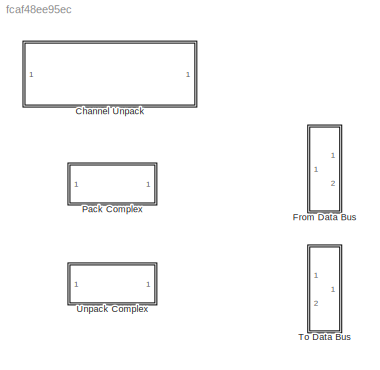
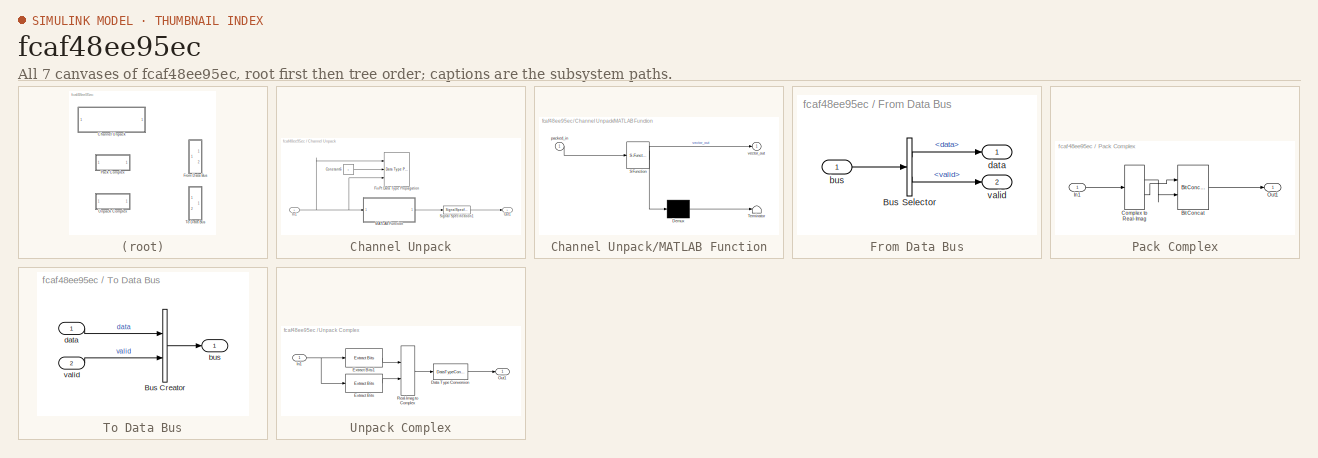
[diagram: thumbnail index - all 7 canvases of the model, root first then tree order]
MODEL slx_fcaf48ee95ec
KIND library
CONFIG AbsTol = auto
CONFIG EnableMultiTasking = off
CONFIG FixedStep = auto
CONFIG MaxStep = auto
CONFIG MinStep = auto
CONFIG RelTol = 1e-3
CONFIG SampleTimeConstraint = Unconstrained
CONFIG Solver = VariableStepAuto
CONFIG SolverName = VariableStepAuto
CONFIG StartTime = 0.0
CONFIG StopTime = 10.0
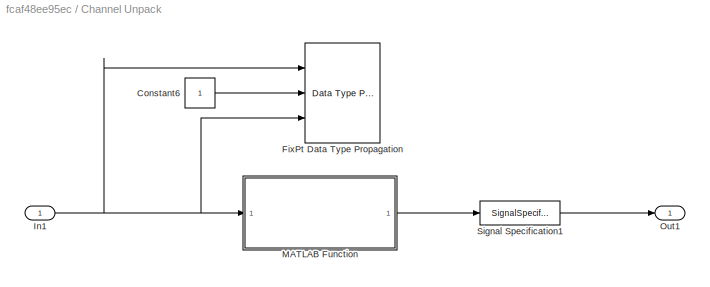
BLOCK [SubSystem] Channel Unpack
  Ports = [1, 1]
  RequestExecContextInheritance = off
BLOCK [Constant] Channel Unpack/Constant6
  OutDataTypeStr = int16
  SampleTime = -1
BLOCK [Reference] Channel Unpack/FixPt Data Type Propagation  REF=simulink/Signal
Attributes/Data Type
Propagation
  Ports = [3]
  SourceBlock = simulink/Signal\nAttributes/Data Type\nPropagation
  SourceProductBaseCode = SL
  SourceProductName = Simulink
  SourceType = Data Type Propagation
BLOCK [Inport] Channel Unpack/In1
  IconDisplay = Port number
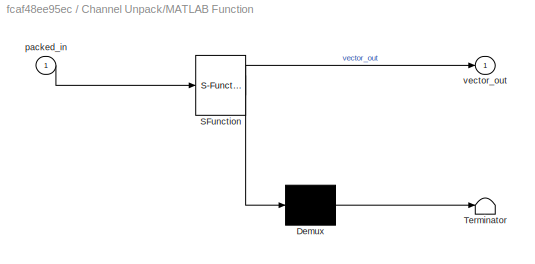
BLOCK [SubSystem] Channel Unpack/MATLAB Function
  ErrorFcn = Stateflow.Translate.translate
  PermitHierarchicalResolution = ExplicitOnly
  Ports = [1, 1]
  RequestExecContextInheritance = off
  SFBlockType = MATLAB Function
  TreatAsAtomicUnit = on
BLOCK [Demux] Channel Unpack/MATLAB Function/ Demux 
  Outputs = 1
  Ports = [1, 1]
BLOCK [S-Function] Channel Unpack/MATLAB Function/ SFunction 
  EnableBusSupport = off
  FunctionName = sf_sfun
  Parameters = complexSamples,samplesPerClock
  PortCounts = [1 2]
  Ports = [1, 2]
  SFcnIsStateOwnerBlock = off
  SFunctionDeploymentMode = off
  Tag = Stateflow S-Function 1
BLOCK [Terminator] Channel Unpack/MATLAB Function/ Terminator 
BLOCK [Inport] Channel Unpack/MATLAB Function/packed_in
  IconDisplay = Port number
BLOCK [Outport] Channel Unpack/MATLAB Function/vector_out
  IconDisplay = Port number
  VectorParamsAs1DForOutWhenUnconnected = off
BLOCK [Outport] Channel Unpack/Out1
  IconDisplay = Port number
  VectorParamsAs1DForOutWhenUnconnected = off
BLOCK [SignalSpecification] Channel Unpack/Signal Specification1
  Dimensions = [samplesPerClock 1]
BLOCK [SubSystem] From Data Bus
  MaskHideContents = on
  Ports = [1, 2]
  RequestExecContextInheritance = off
BLOCK [BusSelector] From Data Bus/Bus Selector
  OutputAsBus = off
  OutputSignals = data,valid
  Ports = [1, 2]
BLOCK [Inport] From Data Bus/bus
  IconDisplay = Port number
BLOCK [Outport] From Data Bus/data
  IconDisplay = Port number
  VectorParamsAs1DForOutWhenUnconnected = off
BLOCK [Outport] From Data Bus/valid
  IconDisplay = Port number
  Port = 2
  VectorParamsAs1DForOutWhenUnconnected = off
BLOCK [SubSystem] Pack Complex
  MaskHideContents = on
  Ports = [1, 1]
  RequestExecContextInheritance = off
BLOCK [Reference] Pack Complex/Bit Concat  REF=hdlsllib/Logic and Bit
Operations/Bit Concat
  Ports = [2, 1]
  SourceBlock = hdlsllib/Logic and Bit\nOperations/Bit Concat
  SourceProductBaseCode = HD
  SourceProductName = HDL Coder
  SourceType = Bit Concat
BLOCK [ComplexToRealImag] Pack Complex/Complex to Real-Imag
  Ports = [1, 2]
BLOCK [Inport] Pack Complex/In1
  IconDisplay = Port number
BLOCK [Outport] Pack Complex/Out1
  IconDisplay = Port number
  VectorParamsAs1DForOutWhenUnconnected = off
BLOCK [SubSystem] To Data Bus
  MaskHideContents = on
  Ports = [2, 1]
  RequestExecContextInheritance = off
BLOCK [BusCreator] To Data Bus/Bus Creator
  DisplayOption = bar
  InheritFromInputs = on
  Inputs = 2
  Ports = [2, 1]
BLOCK [Outport] To Data Bus/bus
  IconDisplay = Port number
  VectorParamsAs1DForOutWhenUnconnected = off
BLOCK [Inport] To Data Bus/data
  IconDisplay = Port number
BLOCK [Inport] To Data Bus/valid
  IconDisplay = Port number
  Port = 2
BLOCK [SubSystem] Unpack Complex
  MaskHideContents = on
  Ports = [1, 1]
  RequestExecContextInheritance = off
BLOCK [DataTypeConversion] Unpack Complex/Data Type Conversion
  ConvertRealWorld = Stored Integer (SI)
  OutDataTypeStr = datatype
  RndMeth = Floor
  SaturateOnIntegerOverflow = off
BLOCK [Reference] Unpack Complex/Extract Bits  REF=simulink/Logic and Bit
Operations/Extract Bits
  Ports = [1, 1]
  SourceBlock = simulink/Logic and Bit\nOperations/Extract Bits
  SourceProductBaseCode = SL
  SourceProductName = Simulink
  SourceType = Extract Bits
BLOCK [Reference] Unpack Complex/Extract Bits1  REF=simulink/Logic and Bit
Operations/Extract Bits
  Ports = [1, 1]
  SourceBlock = simulink/Logic and Bit\nOperations/Extract Bits
  SourceProductBaseCode = SL
  SourceProductName = Simulink
  SourceType = Extract Bits
BLOCK [Inport] Unpack Complex/In1
  IconDisplay = Port number
BLOCK [Outport] Unpack Complex/Out1
  IconDisplay = Port number
  VectorParamsAs1DForOutWhenUnconnected = off
BLOCK [RealImagToComplex] Unpack Complex/Real-Imag to Complex
  Ports = [2, 1]
LINE Channel Unpack/Constant6:1 -> Channel Unpack/FixPt Data Type Propagation:2
NET Channel Unpack/In1:1 -> Channel Unpack/FixPt Data Type Propagation:1, Channel Unpack/FixPt Data Type Propagation:3, Channel Unpack/MATLAB Function:1
LINE Channel Unpack/MATLAB Function:1 -> Channel Unpack/Signal Specification1:1
LINE Channel Unpack/Signal Specification1:1 -> Channel Unpack/Out1:1
LINE From Data Bus/Bus Selector:1 -> From Data Bus/data:1
LINE From Data Bus/Bus Selector:2 -> From Data Bus/valid:1
LINE From Data Bus/bus:1 -> From Data Bus/Bus Selector:1
LINE Pack Complex/Bit Concat:1 -> Pack Complex/Out1:1
LINE Pack Complex/Complex to Real-Imag:1 -> Pack Complex/Bit Concat:2
LINE Pack Complex/Complex to Real-Imag:2 -> Pack Complex/Bit Concat:1
LINE Pack Complex/In1:1 -> Pack Complex/Complex to Real-Imag:1
LINE To Data Bus/Bus Creator:1 -> To Data Bus/bus:1
LINE To Data Bus/data:1 -> To Data Bus/Bus Creator:1
LINE To Data Bus/valid:1 -> To Data Bus/Bus Creator:2
LINE Unpack Complex/Data Type Conversion:1 -> Unpack Complex/Out1:1
LINE Unpack Complex/Extract Bits1:1 -> Unpack Complex/Real-Imag to Complex:1
LINE Unpack Complex/Extract Bits:1 -> Unpack Complex/Real-Imag to Complex:2
NET Unpack Complex/In1:1 -> Unpack Complex/Extract Bits1:1, Unpack Complex/Extract Bits:1
LINE Unpack Complex/Real-Imag to Complex:1 -> Unpack Complex/Data Type Conversion:1
note: NET lines group one-source signal fan-out (src -> all destinations, sorted); 1:1 wires keep LINE
CHART Channel Unpack/MATLAB Function states=1 transitions=1
  STATE_LABEL 'eML_blk_kernel()'
  STATE_LABEL 'SCRIPT:\nfunction vector_out = fcn(packed_in, samplesPerClock, complexSamples)\n%#codegen\n%\n% unpacks incoming ufixN packed_in into vector_out ([samplesPerClock, 1])\n% assumes that samplesPerClock samples are packed into the input\n% if complexSamples is true, assumes that I and Q are interleaved so that \n% packed_in is of length samplesPerClock*bitsPerSample*2. Otherwise\n% packed_in is of length sam...<+828ch>'
